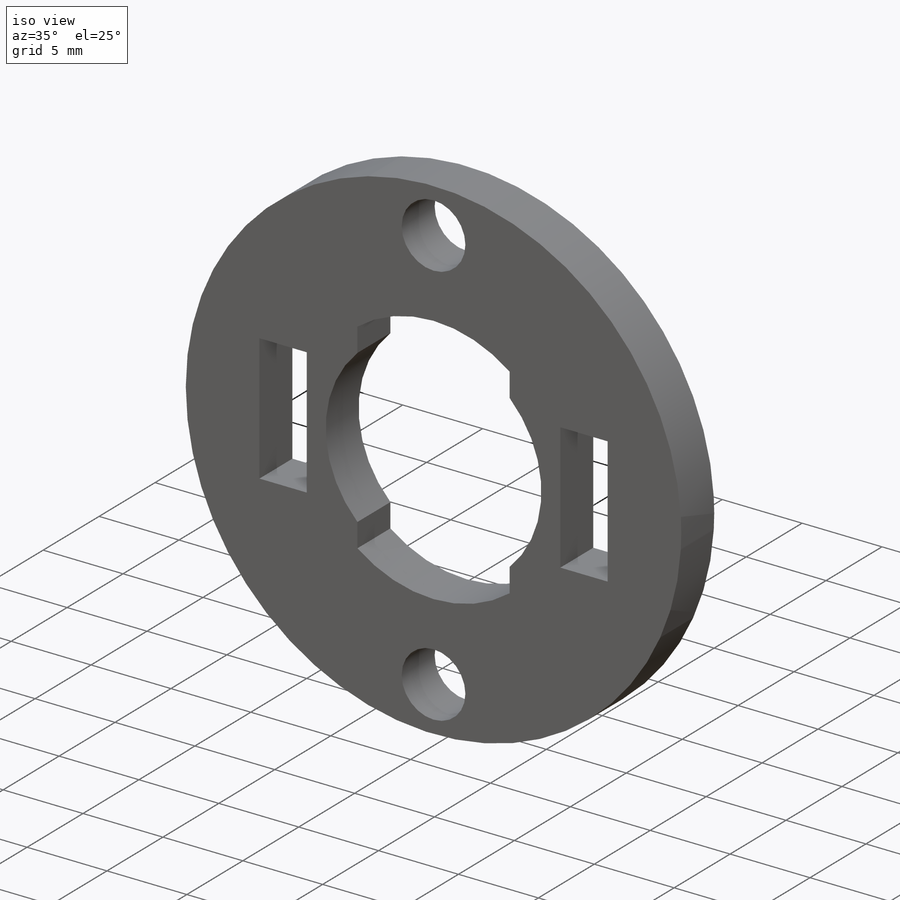
[diagram: iso view]
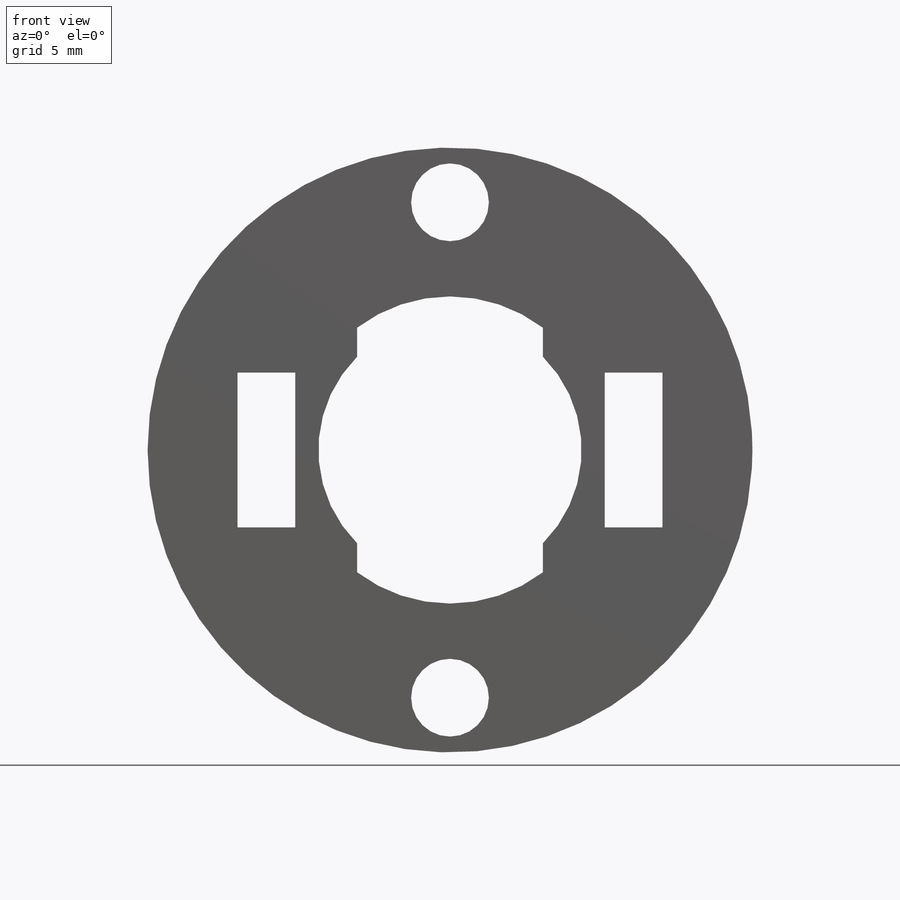
[diagram: front view]
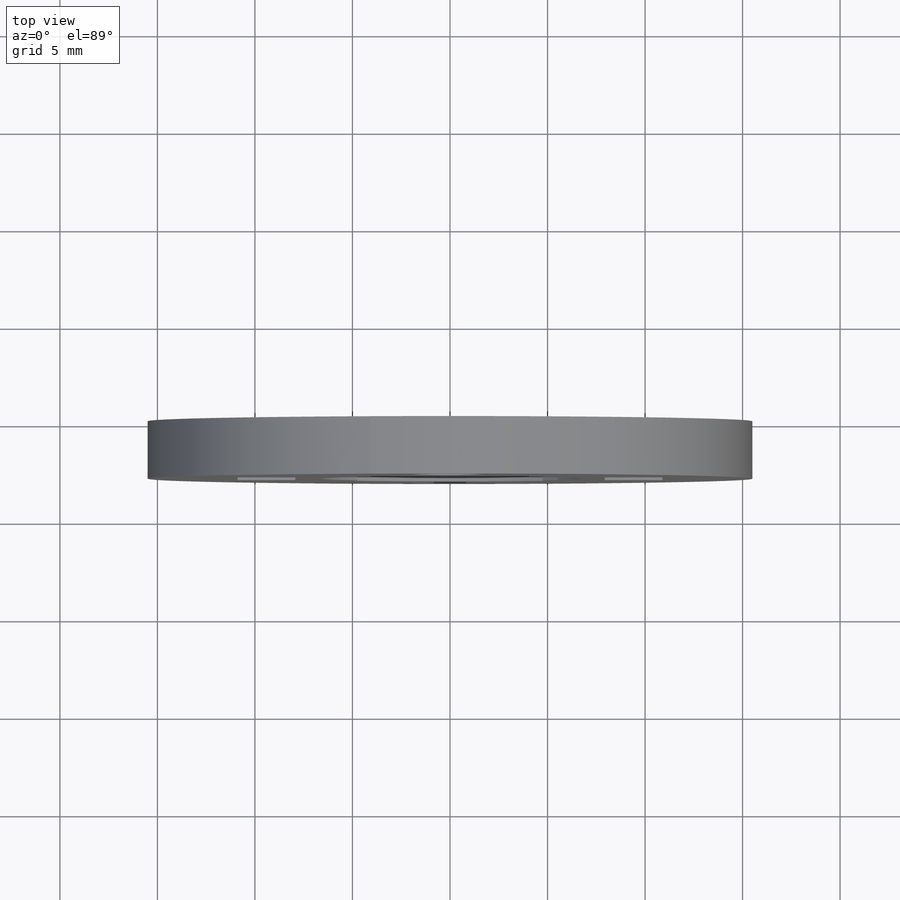
[diagram: top view]
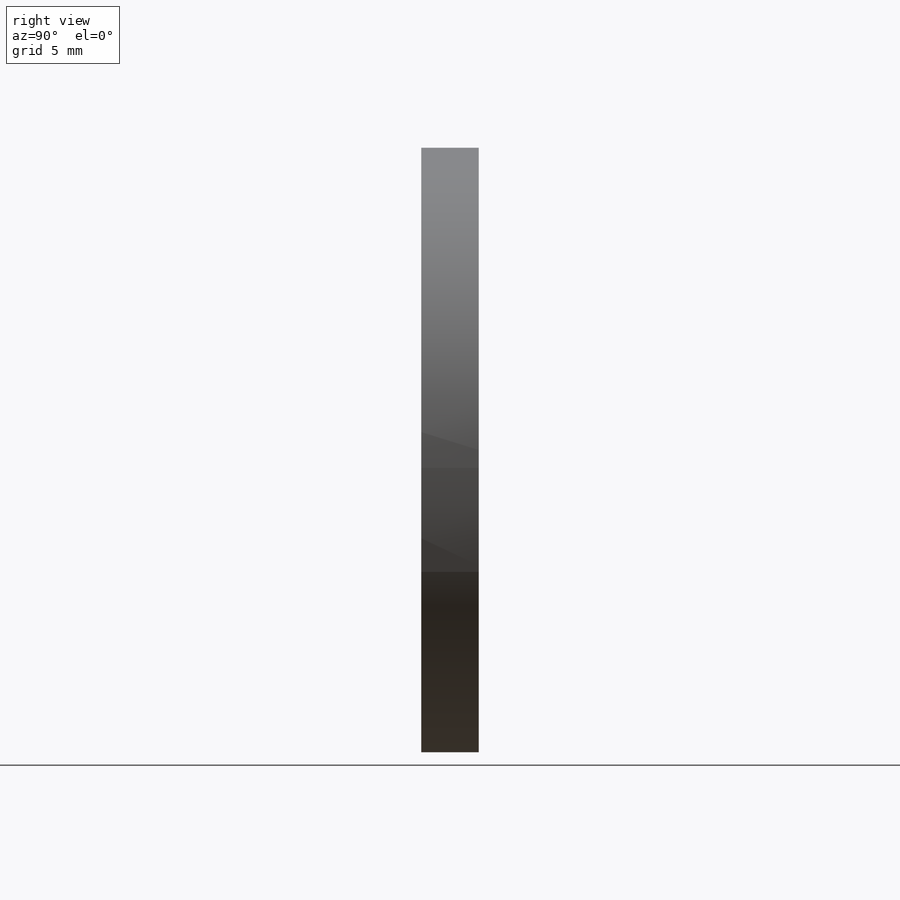
[diagram: right view]
SOLIDWORKS PART (.sldprt)
format: sldprt  version: not decoded by parser v0  size: 235,520 bytes
history: native  units: mm
features: sketch x6, cut_extrude x3, material x1, extrude x1, mirror x1, hole x1 (+12 scaffold rows collapsed)
feature tree (25):
  scaffold x12  (default folders/planes/origin — collapsed)
  material  "Material <not specified>"
  sketch  "Sketch1"  dims[D3=31.0134mm D1=25.4mm D2=31.75mm]
  extrude  "Boss-Extrude1"  Depth=2.9464mm
  sketch  "Sketch2"  dims[c1.D1=10.16mm c1.D3=11.6866mm c1.D2=7.874mm c2.D1=6.75mm c2.D2=6.35mm c2.D3=9.525mm]
  cut_extrude  "Cut-Extrude1"  [1 undecoded]
  sketch  "Sketch3"  dims[D1=7.9375mm D2=2.9591mm D3=15.875mm]
  cut_extrude  "Cut-Extrude2"  [1 undecoded]
  sketch  "Sketch4"  dims[D1=1.27mm]
  cut_extrude  "Cut-Extrude3"  [1 undecoded]
  mirror  "Mirror1"
  hole  "Tap Drill for #4 Helicoil1"  Diameter=3.9878mm Depth=2.9464mm
  sketch  "Sketch7"  dims[D1=25.4mm]
  sketch  "Sketch6"  dims[hole-wizard template sketch: 59 standard entries collapsed; hole parameters kept: c18.Thru Hole Dia.=3.9878mm c18.Thru Hole Depth=2.9464mm]
decode coverage: 8 of 12 modeling features carry decoded parameters
note: ~ marks probable driven/reference dimensions
note: 3 parameter values undecoded
summary: no parameter record found for 3 features
note: suppression state not decoded; provenance and decode notes live in map.json
